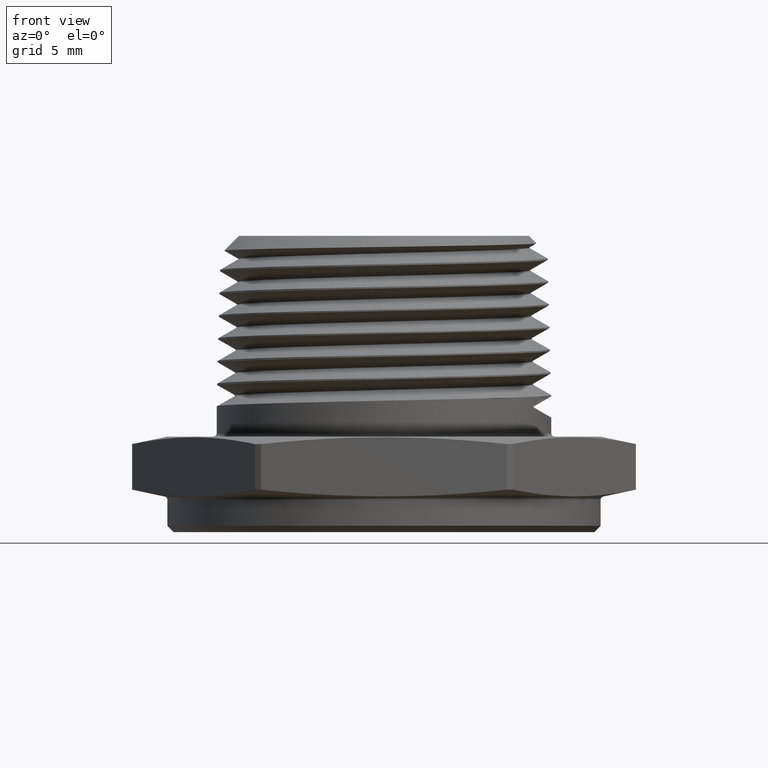
[diagram: clean part render]
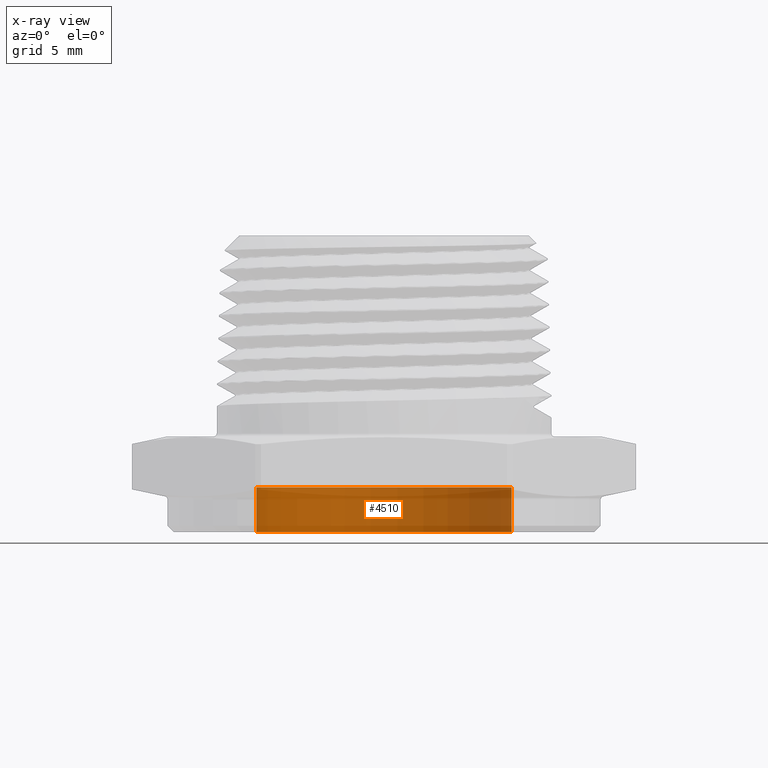
[diagram: x-ray — body ghosted, one internal face saturated and labeled with its STEP entity id]
A machine part, front view, then the same camera in x-ray: the body is ghosted and one INTERNAL B-rep face — a face not visible from any outside direction — is saturated and labeled: STEP entity #4510.
In plain terms, the highlighted cylindrical surface (partial cylindrical patch) has radius 10.16 mm, axis along (0, 0, -1).
Its self-contained STEP definition (entity closure, byte-faithful):
#993 = CARTESIAN_POINT ( 'NONE',  ( 0.4000000000000000800, 4.898587196589413100E-017, 0.03000000000000000600 ) ) ;
#995 = CARTESIAN_POINT ( 'NONE',  ( -0.3999999999999999700, 0.0000000000000000000, 0.03000000000000000600 ) ) ;
#996 = CARTESIAN_POINT ( 'NONE',  ( -0.3999999999999999700, 0.0000000000000000000, -0.1100000000000000000 ) ) ;
#997 = CARTESIAN_POINT ( 'NONE',  ( 0.4000000000000000800, 4.898587196589413100E-017, -0.1100000000000000000 ) ) ;
#998 = CARTESIAN_POINT ( 'NONE',  ( 6.478862429882690300E-017, 0.0000000000000000000, 0.03000000000000000600 ) ) ;
#999 = DIRECTION ( 'NONE',  ( 0.0000000000000000000, 0.0000000000000000000, -1.000000000000000000 ) ) ;
#1009 = DIRECTION ( 'NONE',  ( -1.000000000000000000, 0.0000000000000000000, 0.0000000000000000000 ) ) ;
#2794 = CARTESIAN_POINT ( 'NONE',  ( 0.4000000000000000800, 4.898587196589413100E-017, 0.03000000000000000600 ) ) ;
#2795 = DIRECTION ( 'NONE',  ( 0.0000000000000000000, 0.0000000000000000000, -1.000000000000000000 ) ) ;
#2796 = DIRECTION ( 'NONE',  ( 0.0000000000000000000, 0.0000000000000000000, -1.000000000000000000 ) ) ;
#2797 = CARTESIAN_POINT ( 'NONE',  ( 6.478862429882690300E-017, 0.0000000000000000000, 0.03000000000000000600 ) ) ;
#2798 = DIRECTION ( 'NONE',  ( 0.0000000000000000000, 0.0000000000000000000, -1.000000000000000000 ) ) ;
#2799 = DIRECTION ( 'NONE',  ( -1.000000000000000000, 0.0000000000000000000, 0.0000000000000000000 ) ) ;
#2800 = CARTESIAN_POINT ( 'NONE',  ( -0.3999999999999999700, 0.0000000000000000000, 0.03000000000000000600 ) ) ;
#2801 = CARTESIAN_POINT ( 'NONE',  ( 6.478862429882690300E-017, 0.0000000000000000000, -0.1100000000000000000 ) ) ;
#2802 = DIRECTION ( 'NONE',  ( 0.0000000000000000000, 0.0000000000000000000, -1.000000000000000000 ) ) ;
#2803 = DIRECTION ( 'NONE',  ( -1.000000000000000000, 0.0000000000000000000, 0.0000000000000000000 ) ) ;
#3615 = EDGE_CURVE ( 'NONE', #4348, #4352, #4137, .T. ) ;
#3616 = EDGE_CURVE ( 'NONE', #4350, #4348, #4135, .T. ) ;
#3617 = EDGE_CURVE ( 'NONE', #4351, #4352, #4141, .T. ) ;
#3618 = EDGE_CURVE ( 'NONE', #4350, #4351, #4139, .T. ) ;
#3646 = AXIS2_PLACEMENT_3D ( 'NONE', #2797, #2798, #2799 ) ;
#3647 = AXIS2_PLACEMENT_3D ( 'NONE', #2801, #2802, #2803 ) ;
#3656 = AXIS2_PLACEMENT_3D ( 'NONE', #998, #999, #1009 ) ;
#4030 = EDGE_LOOP ( 'NONE', ( #4492, #4493, #4494, #4495 ) ) ;
#4135 = CIRCLE ( 'NONE', #3646, 0.4000000000000000200 ) ;
#4137 = LINE ( 'NONE', #2794, #4140 ) ;
#4139 = LINE ( 'NONE', #2800, #4144 ) ;
#4140 = VECTOR ( 'NONE', #2795, 39.37007874015748100 ) ;
#4141 = CIRCLE ( 'NONE', #3647, 0.4000000000000000200 ) ;
#4144 = VECTOR ( 'NONE', #2796, 39.37007874015748100 ) ;
#4148 = FACE_OUTER_BOUND ( 'NONE', #4030, .T. ) ;
#4154 = CYLINDRICAL_SURFACE ( 'NONE', #3656, 0.4000000000000000200 ) ;
#4348 = VERTEX_POINT ( 'NONE', #993 ) ;
#4350 = VERTEX_POINT ( 'NONE', #995 ) ;
#4351 = VERTEX_POINT ( 'NONE', #996 ) ;
#4352 = VERTEX_POINT ( 'NONE', #997 ) ;
#4492 = ORIENTED_EDGE ( 'NONE', *, *, #3616, .T. ) ;
#4493 = ORIENTED_EDGE ( 'NONE', *, *, #3615, .T. ) ;
#4494 = ORIENTED_EDGE ( 'NONE', *, *, #3617, .F. ) ;
#4495 = ORIENTED_EDGE ( 'NONE', *, *, #3618, .F. ) ;
#4510 = ADVANCED_FACE ( 'NONE', ( #4148 ), #4154, .T. ) ;